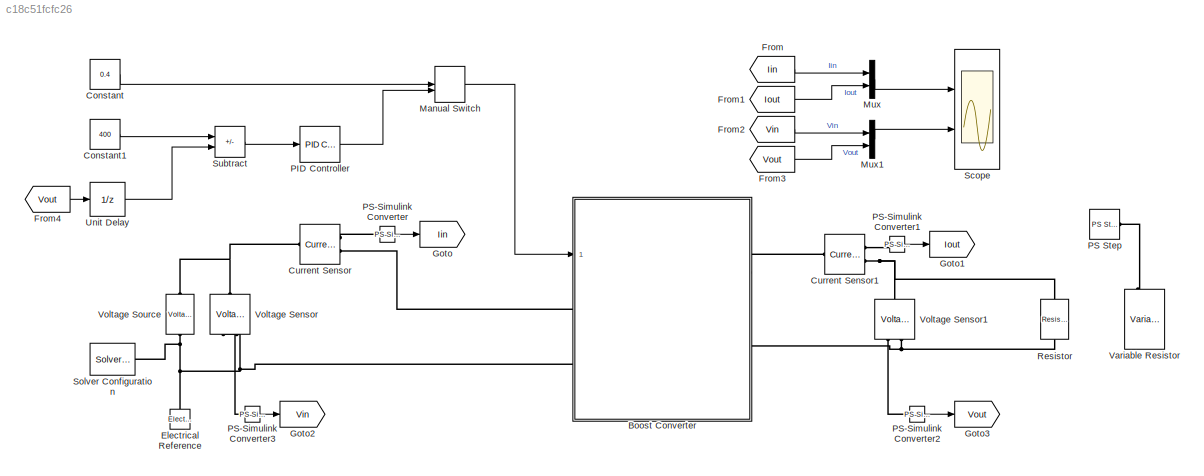
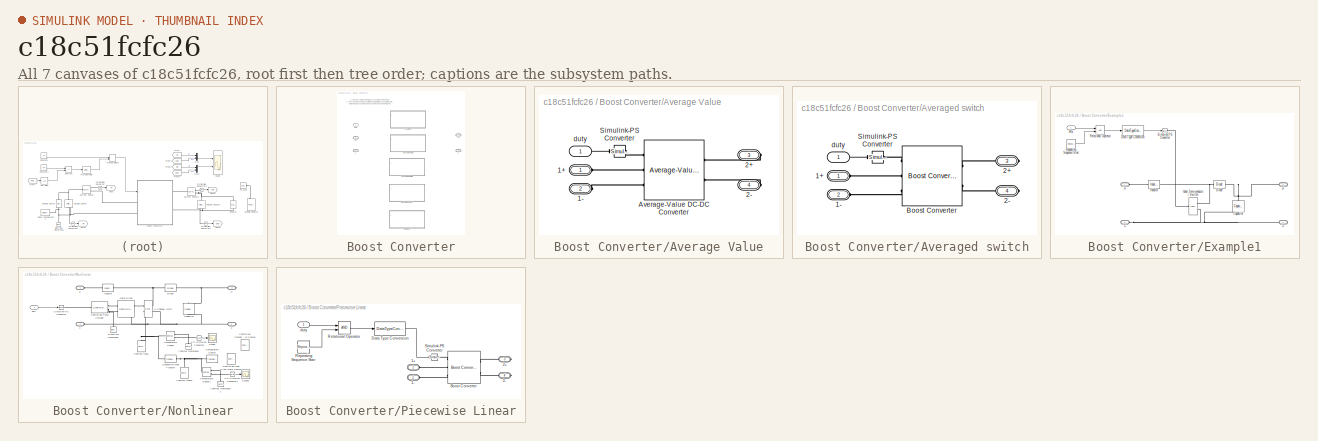
[diagram: thumbnail index - all 7 canvases of the model, root first then tree order]
MODEL slx_c18c51fcfc26
KIND model
CONFIG AbsTol = auto
CONFIG EnableMultiTasking = off
CONFIG FixedStep = auto
CONFIG MaxStep = auto
CONFIG MinStep = auto
CONFIG RelTol = 1e-3
CONFIG SampleTimeConstraint = Unconstrained
CONFIG SolverName = ode15s
CONFIG StartTime = 0.0
CONFIG StopTime = 100e-3
BLOCK [SubSystem] Boost Converter
  Ports = [1, 0, 0, 0, 0, 2, 2]
  RequestExecContextInheritance = off
  Variant = on
BLOCK [PMIOPort] Boost Converter/1+
  Side = Left
BLOCK [PMIOPort] Boost Converter/1-
  Port = 2
  Side = Left
BLOCK [PMIOPort] Boost Converter/2+
  Port = 3
  Side = Right
BLOCK [PMIOPort] Boost Converter/2-
  Port = 4
  Side = Right
BLOCK [SubSystem] Boost Converter/Average Value
  Ports = [1, 0, 0, 0, 0, 2, 2]
  RequestExecContextInheritance = off
  VariantControl = MODE==2
BLOCK [PMIOPort] Boost Converter/Average Value/1+
  Side = Left
BLOCK [PMIOPort] Boost Converter/Average Value/1-
  Port = 2
  Side = Left
BLOCK [PMIOPort] Boost Converter/Average Value/2+
  Port = 3
  Side = Right
BLOCK [PMIOPort] Boost Converter/Average Value/2-
  Port = 4
  Side = Right
BLOCK [Reference] Boost Converter/Average Value/Average-Value DC-DC Converter  REF=ee_lib/Semiconductors &
Converters/Converters/Average-Value DC-DC
Converter
  Ports = [0, 0, 0, 0, 0, 3, 2]
  SourceBlock = ee_lib/Semiconductors &\nConverters/Converters/Average-Value DC-DC\nConverter
  SourceProductBaseCode = PS
  SourceType = Average-Value DC-DC\nConverter
BLOCK [Reference] Boost Converter/Average Value/Simulink-PS Converter  REF=nesl_utility/Simulink-PS
Converter
  Ports = [1, 0, 0, 0, 0, 0, 1]
  SourceBlock = nesl_utility/Simulink-PS\nConverter
  SourceProductBaseCode = PW,SS
  SourceType = Simulink-PS\nConverter
BLOCK [Inport] Boost Converter/Average Value/duty
BLOCK [SubSystem] Boost Converter/Averaged switch
  Ports = [1, 0, 0, 0, 0, 2, 2]
  RequestExecContextInheritance = off
  VariantControl = MODE==3
BLOCK [PMIOPort] Boost Converter/Averaged switch/1+
  Side = Left
BLOCK [PMIOPort] Boost Converter/Averaged switch/1-
  Port = 2
  Side = Left
BLOCK [PMIOPort] Boost Converter/Averaged switch/2+
  Port = 3
  Side = Right
BLOCK [PMIOPort] Boost Converter/Averaged switch/2-
  Port = 4
  Side = Right
BLOCK [Reference] Boost Converter/Averaged switch/Boost Converter  REF=ee_lib/Semiconductors &
Converters/Converters/Boost Converter
  Ports = [0, 0, 0, 0, 0, 3, 2]
  SourceBlock = ee_lib/Semiconductors &\nConverters/Converters/Boost Converter
  SourceProductBaseCode = PS
  SourceType = Boost Converter
BLOCK [Reference] Boost Converter/Averaged switch/Simulink-PS Converter  REF=nesl_utility/Simulink-PS
Converter
  Ports = [1, 0, 0, 0, 0, 0, 1]
  SourceBlock = nesl_utility/Simulink-PS\nConverter
  SourceProductBaseCode = PW,SS
  SourceType = Simulink-PS\nConverter
BLOCK [Inport] Boost Converter/Averaged switch/duty
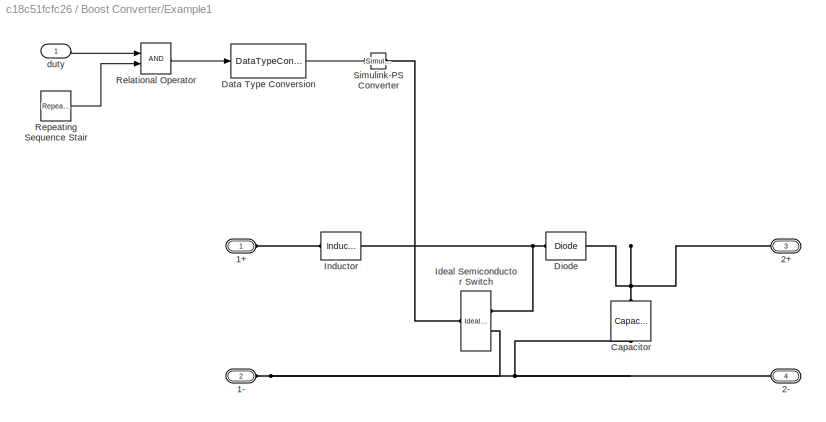
BLOCK [SubSystem] Boost Converter/Example1
  Ports = [1, 0, 0, 0, 0, 2, 2]
  RequestExecContextInheritance = off
  VariantControl = MODE==1
BLOCK [PMIOPort] Boost Converter/Example1/1+
  Side = Left
BLOCK [PMIOPort] Boost Converter/Example1/1-
  Port = 2
  Side = Left
BLOCK [PMIOPort] Boost Converter/Example1/2+
  Port = 3
  Side = Right
BLOCK [PMIOPort] Boost Converter/Example1/2-
  Port = 4
  Side = Right
BLOCK [Reference] Boost Converter/Example1/Capacitor  REF=ee_lib/Passive/Capacitor
  AttributesFormatString = %<c>
  NameLocation = left
  Ports = [0, 0, 0, 0, 0, 1, 1]
  SourceBlock = ee_lib/Passive/Capacitor
  SourceProductBaseCode = PS
  SourceType = Capacitor
BLOCK [DataTypeConversion] Boost Converter/Example1/Data Type Conversion
  RndMeth = Floor
  SaturateOnIntegerOverflow = off
BLOCK [Reference] Boost Converter/Example1/Diode  REF=ee_lib/Semiconductors &
Converters/Diode
  Ports = [0, 0, 0, 0, 0, 1, 1]
  SourceBlock = ee_lib/Semiconductors &\nConverters/Diode
  SourceProductBaseCode = PS
  SourceType = Diode
BLOCK [Reference] Boost Converter/Example1/Ideal Semiconductor Switch  REF=ee_lib/Semiconductors &
Converters/Ideal Semiconductor
Switch
  Ports = [0, 0, 0, 0, 0, 1, 2]
  SourceBlock = ee_lib/Semiconductors &\nConverters/Ideal Semiconductor\nSwitch
  SourceProductBaseCode = PS
  SourceType = Ideal Semiconductor\nSwitch
BLOCK [Reference] Boost Converter/Example1/Inductor  REF=ee_lib/Passive/Inductor
  Ports = [0, 0, 0, 0, 0, 1, 1]
  SourceBlock = ee_lib/Passive/Inductor
  SourceProductBaseCode = PS
  SourceType = Inductor
BLOCK [RelationalOperator] Boost Converter/Example1/Relational Operator
  InputSameDT = off
  OutDataTypeStr = boolean
  Ports = [2, 1]
  RndMeth = Simplest
BLOCK [Reference] Boost Converter/Example1/Repeating Sequence Stair  REF=simulink/Sources/Repeating
Sequence
Stair
  Ports = [0, 1]
  SourceBlock = simulink/Sources/Repeating\nSequence\nStair
  SourceProductBaseCode = SL
  SourceType = Repeating Sequence Stair
BLOCK [Reference] Boost Converter/Example1/Simulink-PS Converter  REF=nesl_utility/Simulink-PS
Converter
  Ports = [1, 0, 0, 0, 0, 0, 1]
  SourceBlock = nesl_utility/Simulink-PS\nConverter
  SourceProductBaseCode = PW,SS
  SourceType = Simulink-PS\nConverter
BLOCK [Inport] Boost Converter/Example1/duty
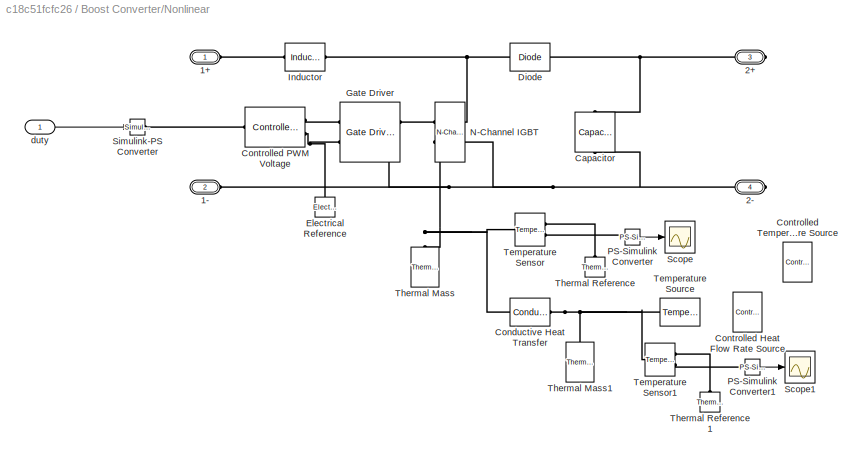
BLOCK [SubSystem] Boost Converter/Nonlinear
  Ports = [1, 0, 0, 0, 0, 2, 2]
  RequestExecContextInheritance = off
  VariantControl = MODE==5
BLOCK [PMIOPort] Boost Converter/Nonlinear/1+
  Side = Left
BLOCK [PMIOPort] Boost Converter/Nonlinear/1-
  Port = 2
  Side = Left
BLOCK [PMIOPort] Boost Converter/Nonlinear/2+
  Port = 3
  Side = Right
BLOCK [PMIOPort] Boost Converter/Nonlinear/2-
  Port = 4
  Side = Right
BLOCK [Reference] Boost Converter/Nonlinear/Capacitor  REF=ee_lib/Passive/Capacitor
  AttributesFormatString = %<c>
  NameLocation = left
  Ports = [0, 0, 0, 0, 0, 1, 1]
  SourceBlock = ee_lib/Passive/Capacitor
  SourceProductBaseCode = PS
  SourceType = Capacitor
BLOCK [Reference] Boost Converter/Nonlinear/Conductive Heat Transfer  REF=fl_lib/Thermal/Thermal Elements/Conductive Heat
Transfer
  Ports = [0, 0, 0, 0, 0, 1, 1]
  SourceBlock = fl_lib/Thermal/Thermal Elements/Conductive Heat\nTransfer
  SourceProductBaseCode = SS
  SourceType = Conductive Heat\nTransfer
BLOCK [Reference] Boost Converter/Nonlinear/Controlled Heat Flow Rate Source  REF=fl_lib/Thermal/Thermal Sources/Controlled Heat Flow
Rate Source
  Commented = on
  NameLocation = right
  Ports = [0, 0, 0, 0, 0, 1, 2]
  SourceBlock = fl_lib/Thermal/Thermal Sources/Controlled Heat Flow\nRate Source
  SourceProductBaseCode = SS
  SourceType = Controlled Heat Flow\nRate Source
BLOCK [Reference] Boost Converter/Nonlinear/Controlled PWM Voltage  REF=ee_lib/Integrated Circuits/Controlled PWM
Voltage
  Ports = [0, 0, 0, 0, 0, 1, 2]
  SourceBlock = ee_lib/Integrated Circuits/Controlled PWM\nVoltage
  SourceProductBaseCode = PS
  SourceType = Controlled PWM\nVoltage
BLOCK [Reference] Boost Converter/Nonlinear/Controlled Temperature Source  REF=fl_lib/Thermal/Thermal Sources/Controlled
Temperature Source
  Commented = on
  NameLocation = right
  Ports = [0, 0, 0, 0, 0, 1, 2]
  SourceBlock = fl_lib/Thermal/Thermal Sources/Controlled\nTemperature Source
  SourceProductBaseCode = SS
  SourceType = Controlled\nTemperature Source
BLOCK [Reference] Boost Converter/Nonlinear/Diode  REF=ee_lib/Semiconductors &
Converters/Diode
  Ports = [0, 0, 0, 0, 0, 1, 1]
  SourceBlock = ee_lib/Semiconductors &\nConverters/Diode
  SourceProductBaseCode = PS
  SourceType = Diode
BLOCK [Reference] Boost Converter/Nonlinear/Electrical Reference  REF=fl_lib/Electrical/Electrical Elements/Electrical Reference
  NameLocation = right
  Ports = [0, 0, 0, 0, 0, 1]
  SourceBlock = fl_lib/Electrical/Electrical Elements/Electrical Reference
  SourceProductBaseCode = SS
  SourceType = Electrical Reference
BLOCK [Reference] Boost Converter/Nonlinear/Gate Driver  REF=ee_lib/Semiconductors &
Converters/Gate Driver
  Ports = [0, 0, 0, 0, 0, 2, 2]
  SourceBlock = ee_lib/Semiconductors &\nConverters/Gate Driver
  SourceProductBaseCode = PS
  SourceType = Gate Driver
BLOCK [Reference] Boost Converter/Nonlinear/Inductor  REF=ee_lib/Passive/Inductor
  Ports = [0, 0, 0, 0, 0, 1, 1]
  SourceBlock = ee_lib/Passive/Inductor
  SourceProductBaseCode = PS
  SourceType = Inductor
BLOCK [Reference] Boost Converter/Nonlinear/N-Channel IGBT  REF=ee_lib/Semiconductors &
Converters/N-Channel IGBT
  Ports = [0, 0, 0, 0, 0, 2, 2]
  SourceBlock = ee_lib/Semiconductors &\nConverters/N-Channel IGBT
  SourceProductBaseCode = PS
  SourceType = N-Channel IGBT
BLOCK [Reference] Boost Converter/Nonlinear/PS-Simulink Converter  REF=nesl_utility/PS-Simulink
Converter
  Ports = [0, 1, 0, 0, 0, 1]
  SourceBlock = nesl_utility/PS-Simulink\nConverter
  SourceProductBaseCode = PW,SS
  SourceType = PS-Simulink\nConverter
BLOCK [Reference] Boost Converter/Nonlinear/PS-Simulink Converter1  REF=nesl_utility/PS-Simulink
Converter
  Ports = [0, 1, 0, 0, 0, 1]
  SourceBlock = nesl_utility/PS-Simulink\nConverter
  SourceProductBaseCode = PW,SS
  SourceType = PS-Simulink\nConverter
BLOCK [Scope] Boost Converter/Nonlinear/Scope
  Floating = off
  NumInputPorts = 1
  Ports = [1]
  ScopeSpecificationString = Simulink.scopes.TimeScopeBlockCfg('CurrentConfiguration', extmgr.ConfigurationSet(extmgr.Configuration('Core','General UI',true),extmgr.Configuration('Core','Source UI',true),extmgr.Configuration('Sources','WiredSimulink',true,'DataLoggingVariableName','ScopeData1'),extmgr.Configuration('Visuals','Time Domain',true,'SerializedDisplays',{struct('MinYLimReal','299.99249','MaxYLimReal','300.06684','Y...<+1449ch>
BLOCK [Scope] Boost Converter/Nonlinear/Scope1
  Floating = off
  NumInputPorts = 1
  Ports = [1]
  ScopeSpecificationString = Simulink.scopes.TimeScopeBlockCfg('CurrentConfiguration', extmgr.ConfigurationSet(extmgr.Configuration('Core','General UI',true),extmgr.Configuration('Core','Source UI',true),extmgr.Configuration('Sources','WiredSimulink',true,'DataLoggingVariableName','ScopeData2'),extmgr.Configuration('Visuals','Time Domain',true,'SerializedDisplays',{struct('MinYLimReal','299.99249','MaxYLimReal','300.06684','Y...<+1449ch>
BLOCK [Reference] Boost Converter/Nonlinear/Simulink-PS Converter  REF=nesl_utility/Simulink-PS
Converter
  Ports = [1, 0, 0, 0, 0, 0, 1]
  SourceBlock = nesl_utility/Simulink-PS\nConverter
  SourceProductBaseCode = PW,SS
  SourceType = Simulink-PS\nConverter
BLOCK [Reference] Boost Converter/Nonlinear/Temperature Sensor  REF=fl_lib/Thermal/Thermal Sensors/Temperature Sensor
  Ports = [0, 0, 0, 0, 0, 1, 2]
  SourceBlock = fl_lib/Thermal/Thermal Sensors/Temperature Sensor
  SourceProductBaseCode = SS
  SourceType = Temperature Sensor
BLOCK [Reference] Boost Converter/Nonlinear/Temperature Sensor1  REF=fl_lib/Thermal/Thermal Sensors/Temperature Sensor
  Ports = [0, 0, 0, 0, 0, 1, 2]
  SourceBlock = fl_lib/Thermal/Thermal Sensors/Temperature Sensor
  SourceProductBaseCode = SS
  SourceType = Temperature Sensor
BLOCK [Reference] Boost Converter/Nonlinear/Temperature Source  REF=fl_lib/Thermal/Thermal Sources/Temperature Source
  NameLocation = top
  Ports = [0, 0, 0, 0, 0, 1]
  SourceBlock = fl_lib/Thermal/Thermal Sources/Temperature Source
  SourceProductBaseCode = SS
  SourceType = Temperature Source
BLOCK [Reference] Boost Converter/Nonlinear/Thermal Mass  REF=fl_lib/Thermal/Thermal Elements/Thermal Mass
  NameLocation = right
  Ports = [0, 0, 0, 0, 0, 1]
  SourceBlock = fl_lib/Thermal/Thermal Elements/Thermal Mass
  SourceProductBaseCode = SS
  SourceType = Thermal Mass
BLOCK [Reference] Boost Converter/Nonlinear/Thermal Mass1  REF=fl_lib/Thermal/Thermal Elements/Thermal Mass
  NameLocation = right
  Ports = [0, 0, 0, 0, 0, 1]
  SourceBlock = fl_lib/Thermal/Thermal Elements/Thermal Mass
  SourceProductBaseCode = SS
  SourceType = Thermal Mass
BLOCK [Reference] Boost Converter/Nonlinear/Thermal Reference  REF=fl_lib/Thermal/Thermal Elements/Thermal Reference
  NameLocation = right
  Ports = [0, 0, 0, 0, 0, 1]
  SourceBlock = fl_lib/Thermal/Thermal Elements/Thermal Reference
  SourceProductBaseCode = SS
  SourceType = Thermal Reference
BLOCK [Reference] Boost Converter/Nonlinear/Thermal Reference1  REF=fl_lib/Thermal/Thermal Elements/Thermal Reference
  NameLocation = right
  Ports = [0, 0, 0, 0, 0, 1]
  SourceBlock = fl_lib/Thermal/Thermal Elements/Thermal Reference
  SourceProductBaseCode = SS
  SourceType = Thermal Reference
BLOCK [Inport] Boost Converter/Nonlinear/duty
BLOCK [SubSystem] Boost Converter/Piecewise Linear
  Ports = [1, 0, 0, 0, 0, 2, 2]
  RequestExecContextInheritance = off
  VariantControl = MODE==4
BLOCK [PMIOPort] Boost Converter/Piecewise Linear/1+
  Side = Left
BLOCK [PMIOPort] Boost Converter/Piecewise Linear/1-
  Port = 2
  Side = Left
BLOCK [PMIOPort] Boost Converter/Piecewise Linear/2+
  Port = 3
  Side = Right
BLOCK [PMIOPort] Boost Converter/Piecewise Linear/2-
  Port = 4
  Side = Right
BLOCK [Reference] Boost Converter/Piecewise Linear/Boost Converter  REF=ee_lib/Semiconductors &
Converters/Converters/Boost Converter
  Ports = [0, 0, 0, 0, 0, 3, 2]
  SourceBlock = ee_lib/Semiconductors &\nConverters/Converters/Boost Converter
  SourceProductBaseCode = PS
  SourceType = Boost Converter
BLOCK [DataTypeConversion] Boost Converter/Piecewise Linear/Data Type Conversion
  RndMeth = Floor
  SaturateOnIntegerOverflow = off
BLOCK [RelationalOperator] Boost Converter/Piecewise Linear/Relational Operator
  InputSameDT = off
  OutDataTypeStr = boolean
  Ports = [2, 1]
  RndMeth = Simplest
BLOCK [Reference] Boost Converter/Piecewise Linear/Repeating Sequence Stair  REF=simulink/Sources/Repeating
Sequence
Stair
  Ports = [0, 1]
  SourceBlock = simulink/Sources/Repeating\nSequence\nStair
  SourceProductBaseCode = SL
  SourceType = Repeating Sequence Stair
BLOCK [Reference] Boost Converter/Piecewise Linear/Simulink-PS Converter  REF=nesl_utility/Simulink-PS
Converter
  Ports = [1, 0, 0, 0, 0, 0, 1]
  SourceBlock = nesl_utility/Simulink-PS\nConverter
  SourceProductBaseCode = PW,SS
  SourceType = Simulink-PS\nConverter
BLOCK [Inport] Boost Converter/Piecewise Linear/duty
BLOCK [Inport] Boost Converter/duty
BLOCK [Constant] Constant
  SampleTime = 100e-6
  Value = 0.4
BLOCK [Constant] Constant1
  SampleTime = 100e-6
  Value = 400
BLOCK [Reference] Current Sensor  REF=fl_lib/Electrical/Electrical Sensors/Current Sensor
  Ports = [0, 0, 0, 0, 0, 1, 2]
  SourceBlock = fl_lib/Electrical/Electrical Sensors/Current Sensor
  SourceProductBaseCode = SS
  SourceType = Current Sensor
BLOCK [Reference] Current Sensor1  REF=fl_lib/Electrical/Electrical Sensors/Current Sensor
  Ports = [0, 0, 0, 0, 0, 1, 2]
  SourceBlock = fl_lib/Electrical/Electrical Sensors/Current Sensor
  SourceProductBaseCode = SS
  SourceType = Current Sensor
BLOCK [Reference] Electrical Reference  REF=fl_lib/Electrical/Electrical Elements/Electrical Reference
  NameLocation = right
  Ports = [0, 0, 0, 0, 0, 1]
  SourceBlock = fl_lib/Electrical/Electrical Elements/Electrical Reference
  SourceProductBaseCode = SS
  SourceType = Electrical Reference
BLOCK [From] From
  GotoTag = Iin
BLOCK [From] From1
  GotoTag = Iout
BLOCK [From] From2
  GotoTag = Vin
BLOCK [From] From3
  GotoTag = Vout
BLOCK [From] From4
  GotoTag = Vout
BLOCK [Goto] Goto
  GotoTag = Iin
BLOCK [Goto] Goto1
  GotoTag = Iout
BLOCK [Goto] Goto2
  GotoTag = Vin
BLOCK [Goto] Goto3
  GotoTag = Vout
BLOCK [ManualSwitch] Manual Switch
  CurrentSetting = 0
BLOCK [Mux] Mux
  DisplayOption = bar
  Inputs = 2
  Ports = [2, 1]
BLOCK [Mux] Mux1
  DisplayOption = bar
  Inputs = 2
  Ports = [2, 1]
BLOCK [Reference] PID Controller  REF=slpidlib/PID Controller
  Ports = [1, 1]
  SourceBlock = slpidlib/PID Controller
  SourceProductBaseCode = SL
  SourceType = PID 1dof
BLOCK [Reference] PS Step  REF=fl_lib/Physical Signals/Sources/PS Step
  Commented = on
  Ports = [0, 0, 0, 0, 0, 0, 1]
  SourceBlock = fl_lib/Physical Signals/Sources/PS Step
  SourceProductBaseCode = SS
  SourceType = PS Step
BLOCK [Reference] PS-Simulink Converter  REF=nesl_utility/PS-Simulink
Converter
  Ports = [0, 1, 0, 0, 0, 1]
  SourceBlock = nesl_utility/PS-Simulink\nConverter
  SourceProductBaseCode = PW,SS
  SourceType = PS-Simulink\nConverter
BLOCK [Reference] PS-Simulink Converter1  REF=nesl_utility/PS-Simulink
Converter
  Ports = [0, 1, 0, 0, 0, 1]
  SourceBlock = nesl_utility/PS-Simulink\nConverter
  SourceProductBaseCode = PW,SS
  SourceType = PS-Simulink\nConverter
BLOCK [Reference] PS-Simulink Converter2  REF=nesl_utility/PS-Simulink
Converter
  Ports = [0, 1, 0, 0, 0, 1]
  SourceBlock = nesl_utility/PS-Simulink\nConverter
  SourceProductBaseCode = PW,SS
  SourceType = PS-Simulink\nConverter
BLOCK [Reference] PS-Simulink Converter3  REF=nesl_utility/PS-Simulink
Converter
  Ports = [0, 1, 0, 0, 0, 1]
  SourceBlock = nesl_utility/PS-Simulink\nConverter
  SourceProductBaseCode = PW,SS
  SourceType = PS-Simulink\nConverter
BLOCK [Reference] Resistor  REF=ee_lib/Passive/Resistor
  NameLocation = left
  Ports = [0, 0, 0, 0, 0, 1, 1]
  SourceBlock = ee_lib/Passive/Resistor
  SourceProductBaseCode = PS
  SourceType = Resistor
BLOCK [Scope] Scope
  Floating = off
  NumInputPorts = 2
  Ports = [2]
  ScopeSpecificationString = Simulink.scopes.TimeScopeBlockCfg('CurrentConfiguration', extmgr.ConfigurationSet(extmgr.Configuration('Core','General UI',true),extmgr.Configuration('Core','Source UI',true),extmgr.Configuration('Sources','WiredSimulink',true),extmgr.Configuration('Visuals','Time Domain',true,'SerializedDisplays',{struct('MinYLimReal','-171.8837','MaxYLimReal','1530.02764','YLabelReal','','MinYLimMag',' 0.00000',...<+1970ch>
BLOCK [Reference] Solver Configuration  REF=nesl_utility/Solver
Configuration
  Ports = [0, 0, 0, 0, 0, 0, 1]
  SourceBlock = nesl_utility/Solver\nConfiguration
  SourceProductBaseCode = PW,SS
  SourceType = Solver\nConfiguration
BLOCK [Sum] Subtract
  IconShape = rectangular
  Inputs = +-
  Ports = [2, 1]
BLOCK [UnitDelay] Unit Delay
  HasFrameUpgradeWarning = on
  SampleTime = 100e-6
BLOCK [Reference] Variable Resistor  REF=fl_lib/Electrical/Electrical Elements/Variable Resistor
  Commented = on
  NameLocation = left
  Ports = [0, 0, 0, 0, 0, 2, 1]
  SourceBlock = fl_lib/Electrical/Electrical Elements/Variable Resistor
  SourceProductBaseCode = SS
  SourceType = Variable Resistor
BLOCK [Reference] Voltage Sensor  REF=fl_lib/Electrical/Electrical Sensors/Voltage Sensor
  NameLocation = right
  Ports = [0, 0, 0, 0, 0, 1, 2]
  SourceBlock = fl_lib/Electrical/Electrical Sensors/Voltage Sensor
  SourceProductBaseCode = SS
  SourceType = Voltage Sensor
BLOCK [Reference] Voltage Sensor1  REF=fl_lib/Electrical/Electrical Sensors/Voltage Sensor
  NameLocation = right
  Ports = [0, 0, 0, 0, 0, 1, 2]
  SourceBlock = fl_lib/Electrical/Electrical Sensors/Voltage Sensor
  SourceProductBaseCode = SS
  SourceType = Voltage Sensor
BLOCK [Reference] Voltage Source  REF=ee_lib/Sources/Voltage Source
  NameLocation = right
  Ports = [0, 0, 0, 0, 0, 1, 1]
  SourceBlock = ee_lib/Sources/Voltage Source
  SourceProductBaseCode = PS
  SourceType = Voltage Source
ANNOTATION Boost Converter: 1) Add Subsystem or Model blocks as valid variant choices. 2) You cannot connect blocks at this level. At simulation, connectivity is automatically determined, based on the active variant and port name matching.
LINE Boost Converter/Average Value/duty:1 -> Boost Converter/Average Value/Simulink-PS Converter:1
LINE Boost Converter/Averaged switch/duty:1 -> Boost Converter/Averaged switch/Simulink-PS Converter:1
LINE Boost Converter/Example1/Data Type Conversion:1 -> Boost Converter/Example1/Simulink-PS Converter:1
LINE Boost Converter/Example1/Relational Operator:1 -> Boost Converter/Example1/Data Type Conversion:1
LINE Boost Converter/Example1/Repeating Sequence Stair:1 -> Boost Converter/Example1/Relational Operator:2
LINE Boost Converter/Example1/duty:1 -> Boost Converter/Example1/Relational Operator:1
LINE Boost Converter/Nonlinear/PS-Simulink Converter1:1 -> Boost Converter/Nonlinear/Scope1:1
LINE Boost Converter/Nonlinear/PS-Simulink Converter:1 -> Boost Converter/Nonlinear/Scope:1
LINE Boost Converter/Nonlinear/duty:1 -> Boost Converter/Nonlinear/Simulink-PS Converter:1
LINE Boost Converter/Piecewise Linear/Data Type Conversion:1 -> Boost Converter/Piecewise Linear/Simulink-PS Converter:1
LINE Boost Converter/Piecewise Linear/Relational Operator:1 -> Boost Converter/Piecewise Linear/Data Type Conversion:1
LINE Boost Converter/Piecewise Linear/Repeating Sequence Stair:1 -> Boost Converter/Piecewise Linear/Relational Operator:2
LINE Boost Converter/Piecewise Linear/duty:1 -> Boost Converter/Piecewise Linear/Relational Operator:1
LINE Constant1:1 -> Subtract:1
LINE Constant:1 -> Manual Switch:1
LINE From1:1 -> Mux:2
LINE From2:1 -> Mux1:1
LINE From3:1 -> Mux1:2
LINE From4:1 -> Unit Delay:1
LINE From:1 -> Mux:1
LINE Manual Switch:1 -> Boost Converter:1
LINE Mux1:1 -> Scope:2
LINE Mux:1 -> Scope:1
LINE PID Controller:1 -> Manual Switch:2
LINE PS-Simulink Converter1:1 -> Goto1:1
LINE PS-Simulink Converter2:1 -> Goto3:1
LINE PS-Simulink Converter3:1 -> Goto2:1
LINE PS-Simulink Converter:1 -> Goto:1
LINE Subtract:1 -> PID Controller:1
LINE Unit Delay:1 -> Subtract:2
PLINE Boost Converter/Average Value/1+:RConn1 -- Boost Converter/Average Value/Average-Value DC-DC Converter:LConn2
PLINE Boost Converter/Average Value/1-:RConn1 -- Boost Converter/Average Value/Average-Value DC-DC Converter:LConn3
PLINE Boost Converter/Average Value/2+:RConn1 -- Boost Converter/Average Value/Average-Value DC-DC Converter:RConn1
PLINE Boost Converter/Average Value/2-:RConn1 -- Boost Converter/Average Value/Average-Value DC-DC Converter:RConn2
PLINE Boost Converter/Average Value/Average-Value DC-DC Converter:LConn1 -- Boost Converter/Average Value/Simulink-PS Converter:RConn1
PLINE Boost Converter/Averaged switch/1+:RConn1 -- Boost Converter/Averaged switch/Boost Converter:LConn2
PLINE Boost Converter/Averaged switch/1-:RConn1 -- Boost Converter/Averaged switch/Boost Converter:LConn3
PLINE Boost Converter/Averaged switch/2+:RConn1 -- Boost Converter/Averaged switch/Boost Converter:RConn1
PLINE Boost Converter/Averaged switch/2-:RConn1 -- Boost Converter/Averaged switch/Boost Converter:RConn2
PLINE Boost Converter/Averaged switch/Boost Converter:LConn1 -- Boost Converter/Averaged switch/Simulink-PS Converter:RConn1
PLINE Boost Converter/Example1/1+:RConn1 -- Boost Converter/Example1/Inductor:LConn1
PNET net1: Boost Converter/Example1/1-:RConn1 -- Boost Converter/Example1/2-:RConn1 -- Boost Converter/Example1/Capacitor:RConn1 -- Boost Converter/Example1/Ideal Semiconductor Switch:RConn2
PNET net2: Boost Converter/Example1/2+:RConn1 -- Boost Converter/Example1/Capacitor:LConn1 -- Boost Converter/Example1/Diode:RConn1
PNET net3: Boost Converter/Example1/Diode:LConn1 -- Boost Converter/Example1/Ideal Semiconductor Switch:RConn1 -- Boost Converter/Example1/Inductor:RConn1
PLINE Boost Converter/Example1/Ideal Semiconductor Switch:LConn1 -- Boost Converter/Example1/Simulink-PS Converter:RConn1
PLINE Boost Converter/Nonlinear/1+:RConn1 -- Boost Converter/Nonlinear/Inductor:LConn1
PNET net4: Boost Converter/Nonlinear/1-:RConn1 -- Boost Converter/Nonlinear/2-:RConn1 -- Boost Converter/Nonlinear/Capacitor:RConn1 -- Boost Converter/Nonlinear/Gate Driver:RConn2 -- Boost Converter/Nonlinear/N-Channel IGBT:RConn2
PNET net5: Boost Converter/Nonlinear/2+:RConn1 -- Boost Converter/Nonlinear/Capacitor:LConn1 -- Boost Converter/Nonlinear/Diode:RConn1
PNET net6: Boost Converter/Nonlinear/Conductive Heat Transfer:LConn1 -- Boost Converter/Nonlinear/N-Channel IGBT:LConn2 -- Boost Converter/Nonlinear/Temperature Sensor:LConn1 -- Boost Converter/Nonlinear/Thermal Mass:LConn1
PNET net7: Boost Converter/Nonlinear/Conductive Heat Transfer:RConn1 -- Boost Converter/Nonlinear/Temperature Sensor1:LConn1 -- Boost Converter/Nonlinear/Temperature Source:LConn1 -- Boost Converter/Nonlinear/Thermal Mass1:LConn1
PLINE Boost Converter/Nonlinear/Controlled PWM Voltage:LConn1 -- Boost Converter/Nonlinear/Simulink-PS Converter:RConn1
PLINE Boost Converter/Nonlinear/Controlled PWM Voltage:RConn1 -- Boost Converter/Nonlinear/Gate Driver:LConn1
PNET net8: Boost Converter/Nonlinear/Controlled PWM Voltage:RConn2 -- Boost Converter/Nonlinear/Electrical Reference:LConn1 -- Boost Converter/Nonlinear/Gate Driver:LConn2
PNET net9: Boost Converter/Nonlinear/Diode:LConn1 -- Boost Converter/Nonlinear/Inductor:RConn1 -- Boost Converter/Nonlinear/N-Channel IGBT:RConn1
PLINE Boost Converter/Nonlinear/Gate Driver:RConn1 -- Boost Converter/Nonlinear/N-Channel IGBT:LConn1
PLINE Boost Converter/Nonlinear/PS-Simulink Converter1:LConn1 -- Boost Converter/Nonlinear/Temperature Sensor1:RConn2
PLINE Boost Converter/Nonlinear/PS-Simulink Converter:LConn1 -- Boost Converter/Nonlinear/Temperature Sensor:RConn2
PLINE Boost Converter/Nonlinear/Temperature Sensor1:RConn1 -- Boost Converter/Nonlinear/Thermal Reference1:LConn1
PLINE Boost Converter/Nonlinear/Temperature Sensor:RConn1 -- Boost Converter/Nonlinear/Thermal Reference:LConn1
PLINE Boost Converter/Piecewise Linear/1+:RConn1 -- Boost Converter/Piecewise Linear/Boost Converter:LConn2
PLINE Boost Converter/Piecewise Linear/1-:RConn1 -- Boost Converter/Piecewise Linear/Boost Converter:LConn3
PLINE Boost Converter/Piecewise Linear/2+:RConn1 -- Boost Converter/Piecewise Linear/Boost Converter:RConn1
PLINE Boost Converter/Piecewise Linear/2-:RConn1 -- Boost Converter/Piecewise Linear/Boost Converter:RConn2
PLINE Boost Converter/Piecewise Linear/Boost Converter:LConn1 -- Boost Converter/Piecewise Linear/Simulink-PS Converter:RConn1
PLINE Boost Converter:LConn1 -- Current Sensor:RConn2
PNET net10: Boost Converter:LConn2 -- Electrical Reference:LConn1 -- Solver Configuration:RConn1 -- Voltage Sensor:RConn2 -- Voltage Source:RConn1
PLINE Boost Converter:RConn1 -- Current Sensor1:LConn1
PNET net11: Boost Converter:RConn2 -- Resistor:RConn1 -- Voltage Sensor1:RConn2
PLINE Current Sensor1:RConn1 -- PS-Simulink Converter1:LConn1
PNET net12: Current Sensor1:RConn2 -- Resistor:LConn1 -- Voltage Sensor1:LConn1
PNET net13: Current Sensor:LConn1 -- Voltage Sensor:LConn1 -- Voltage Source:LConn1
PLINE Current Sensor:RConn1 -- PS-Simulink Converter:LConn1
PLINE PS Step:RConn1 -- Variable Resistor:LConn1
PLINE PS-Simulink Converter2:LConn1 -- Voltage Sensor1:RConn1
PLINE PS-Simulink Converter3:LConn1 -- Voltage Sensor:RConn1
note: PNET lines group multi-terminal physical nets as a canonical sorted terminal list (undirected conserving connections); 2-terminal nets keep the pairwise PLINE form
